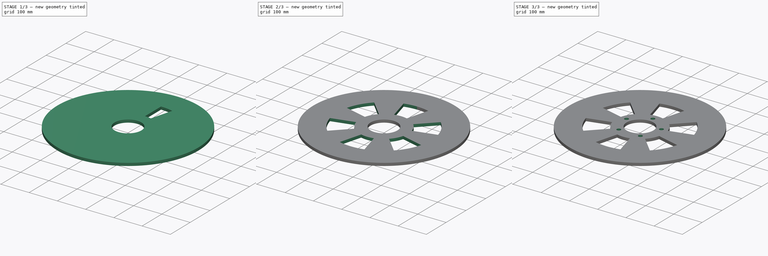
[diagram: build sequence overview — one tinted view per stage of 3, left to right]
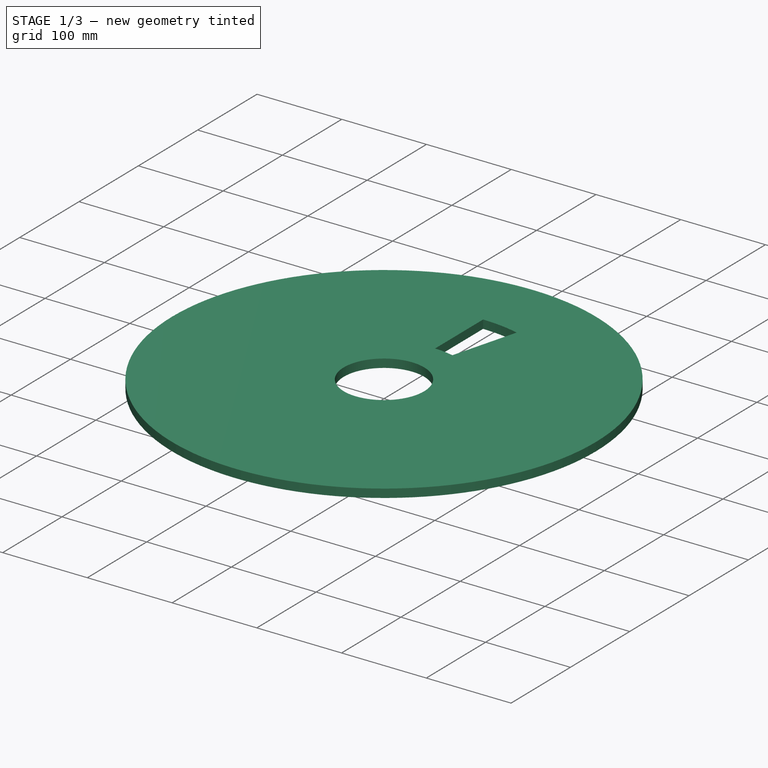
[diagram: stage 1 of 3 — iso view after this stage's code; geometry added in this stage tinted green]
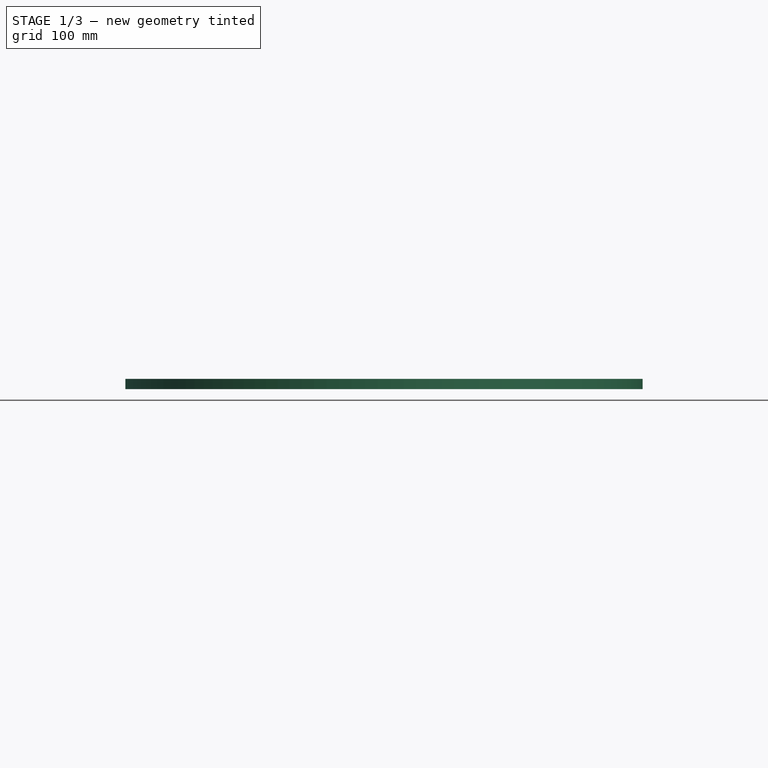
[diagram: stage 1 of 3 — front view after this stage's code; geometry added in this stage tinted green]
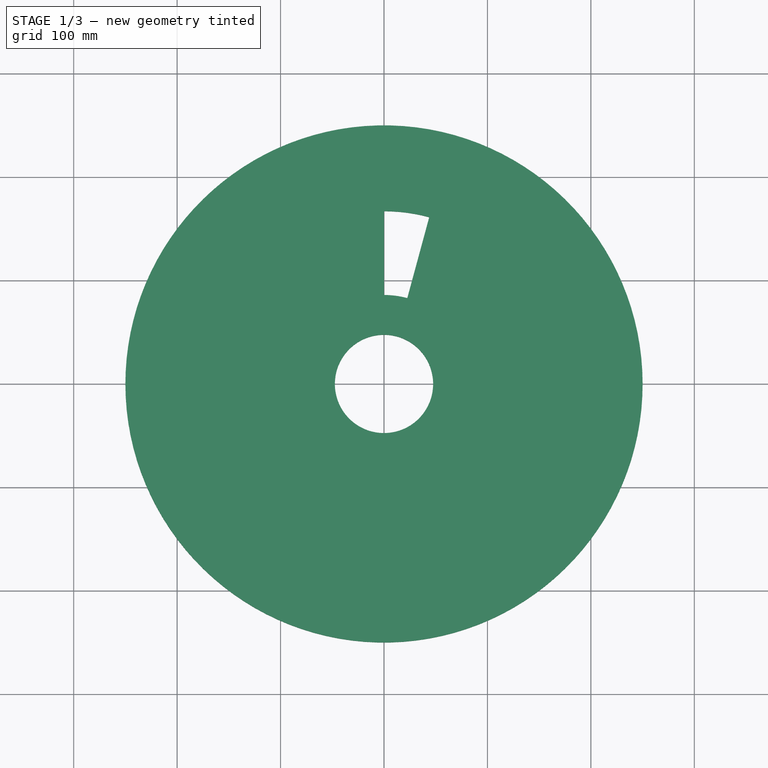
[diagram: stage 1 of 3 — top view after this stage's code; geometry added in this stage tinted green]
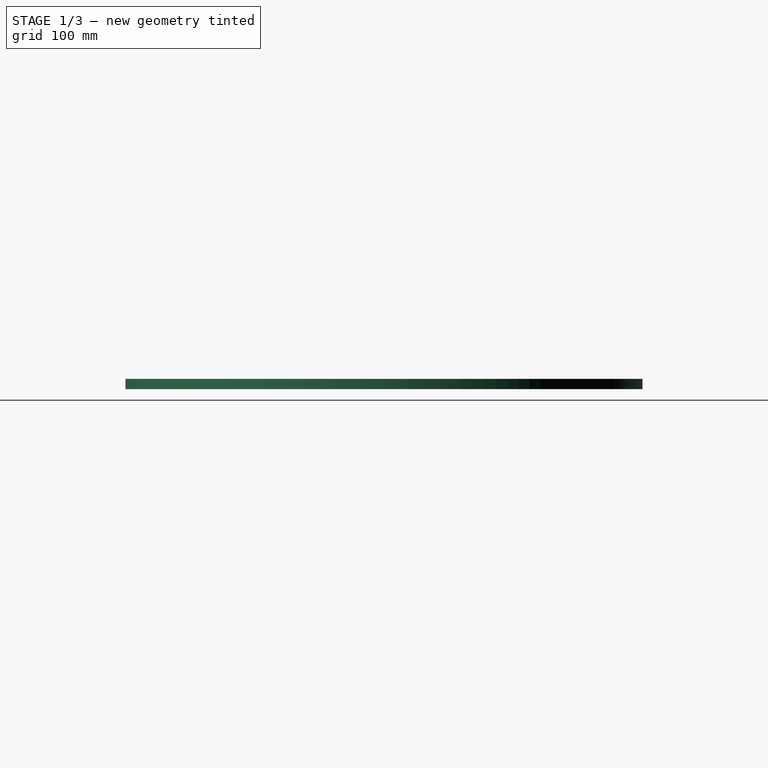
[diagram: stage 1 of 3 — right view after this stage's code; geometry added in this stage tinted green]
FCSTD DOCUMENT  (FreeCAD 0.21R33771 (Git))
Label: Rotor_Disk_Back_ReducedWeight
License: All rights reserved
LicenseURL: http://en.wikipedia.org/wiki/All_rights_reserved
objects: Sketcher::SketchObject×3, PartDesign::Pocket×2, PartDesign::PolarPattern×2, PartDesign::Pad×1, Spreadsheet::Sheet×1, PartDesign::Mirrored×1, PartDesign::MultiTransform×1, PartDesign::Body×1
note: 14 computed .brp shape members not serialized (recipe doc carries the construction recipe); baked Part::Feature solids carry a one-line shape summary decoded from their .brp
EXTERNAL_REF file=../../Master_of_Puppets.FCStd obj=Alternator
EXTERNAL_REF file=../../Master_of_Puppets.FCStd obj=Hub
EXTERNAL_REF file=../../Master_of_Puppets.FCStd obj=Spreadsheet

FEATURE [Sketcher::SketchObject] Sketch  label="DiskSketch"
  FullyConstrained = true
  MapMode = 5
  Support = -> [XY_Plane]
  expr: Constraints[1] = Spreadsheet.RotorDiskRadius
  expr: Constraints[2] = Spreadsheet.RotorDiskCentralHoleRadius
  sketch-geometry (2):
    g0: Circle CenterX=0 CenterY=0 CenterZ=0 NormalX=0 NormalY=0 NormalZ=1 AngleXU=0 Radius=250
    g1: Circle CenterX=0 CenterY=0 CenterZ=0 NormalX=0 NormalY=0 NormalZ=1 AngleXU=0 Radius=47.5
  constraints (4):
    c: Coincident(g0,g-1)
    c: Radius(g0) = 250
    c: Radius(g1) = 47.5
    c: Coincident(g1,g0)
FEATURE [PartDesign::Pad] Pad  label="Disk"
  AllowMultiFace = false
  Direction = (0,0,1)
  Length = 10
  Length2 = 100
  Profile = -> Sketch
  Type = 0
  expr: Length = Spreadsheet.RotorDiskThickness
FEATURE [Sketcher::SketchObject] Sketch001  label="PocketSketch"
  FullyConstrained = true
  MapMode = 5
  Placement = pos=(0,0,10) rot=(0,0,1;0rad)
  Support = -> [Pad]
  expr: Constraints[12] = Spreadsheet.WidthOuterPocket / 2
  expr: Constraints[13] = Spreadsheet.WidthInnerPocket / 2
  expr: Constraints[2] = Spreadsheet.PocketOuterRadius
  expr: Constraints[3] = Spreadsheet.PocketInnerRadius
  sketch-geometry (6):
    g0: Circle CenterX=0 CenterY=0 CenterZ=0 NormalX=0 NormalY=0 NormalZ=1 AngleXU=0 Radius=86
    g1: Circle CenterX=0 CenterY=0 CenterZ=0 NormalX=0 NormalY=0 NormalZ=1 AngleXU=0 Radius=167
    g2: LineSegment StartX=22.5147 StartY=83.0005 StartZ=0 EndX=43.7205 EndY=161.175 EndZ=0
    g3: LineSegment StartX=5.3e-15 StartY=86 StartZ=0 EndX=5.3e-15 EndY=167 EndZ=0
    g4: ArcOfCircle CenterX=0 CenterY=5.0665e-12 CenterZ=0 NormalX=0 NormalY=0 NormalZ=1 AngleXU=0 Radius=86 StartAngle=1.30591 EndAngle=1.5708
    g5: ArcOfCircle CenterX=0 CenterY=5.0665e-12 CenterZ=0 NormalX=0 NormalY=0 NormalZ=1 AngleXU=0 Radius=167 StartAngle=1.30591 EndAngle=1.5708
  constraints (17):
    c: Coincident(g0,g-1)
    c: Coincident(g1,g-1)
    c: Radius(g1) = 167
    c: Radius(g0) = 86
    c: PointOnObject(g3,g0)
    c: PointOnObject(g3,g1)
    c: Vertical(g3)
    c: Coincident(g4,g2)
    c: Coincident(g4,g3)
    c: PointOnObject(g5,g-2)
    c: Coincident(g5,g2)
    c: Coincident(g5,g3)
    c: DistanceX(g-1,g2) = 43.7205
    c: DistanceX(g-1,g2) = 22.5147
    c: PointOnObject(g2,g1)
    c: DistanceX(g-1,g3) = 0
    c: Coincident(g4,g5)
FEATURE [PartDesign::Pocket] Pocket  label="PocketPocket"
  AllowMultiFace = false
  BaseFeature = -> Pad
  Direction = (0,0,-1)
  Length = 5
  Length2 = 100
  Profile = -> Sketch001
  Type = 1
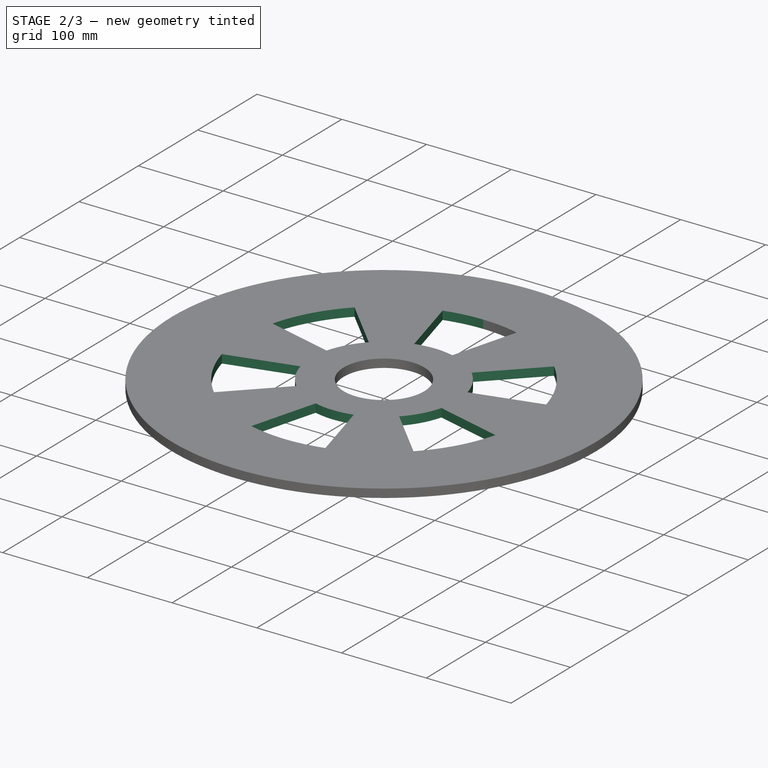
[diagram: stage 2 of 3 — iso view after this stage's code; geometry added in this stage tinted green]
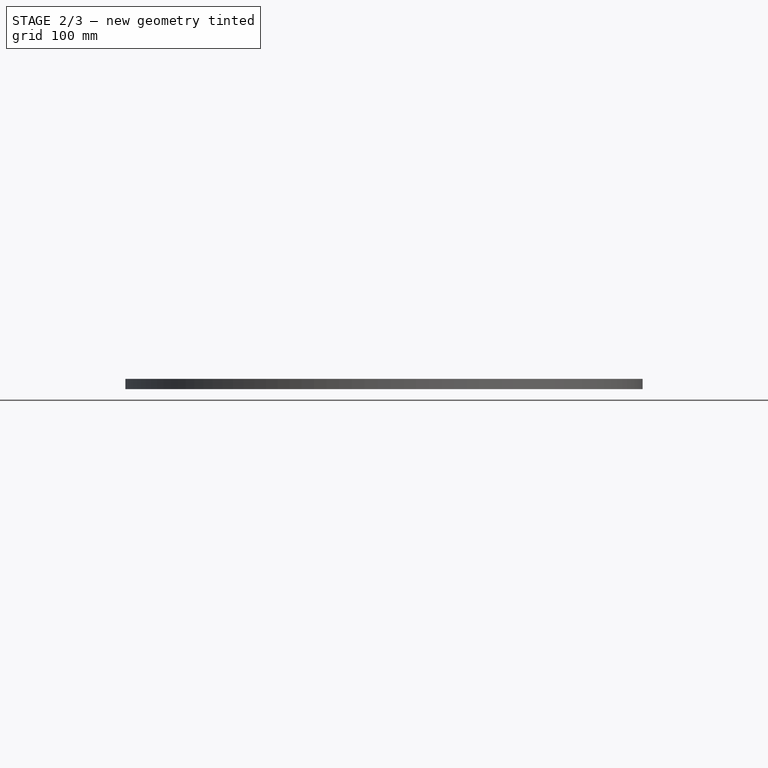
[diagram: stage 2 of 3 — front view after this stage's code; geometry added in this stage tinted green]
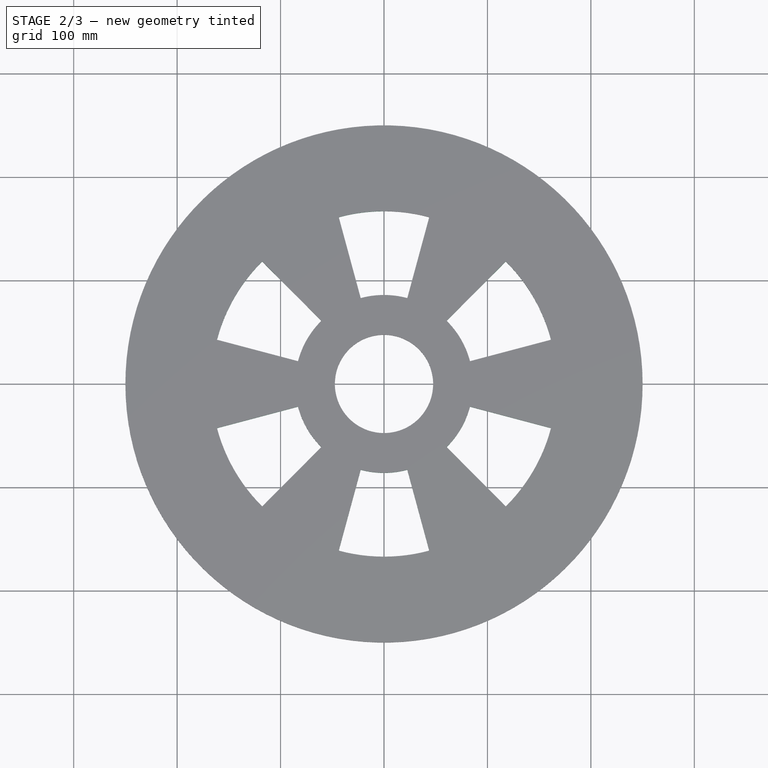
[diagram: stage 2 of 3 — top view after this stage's code; geometry added in this stage tinted green]
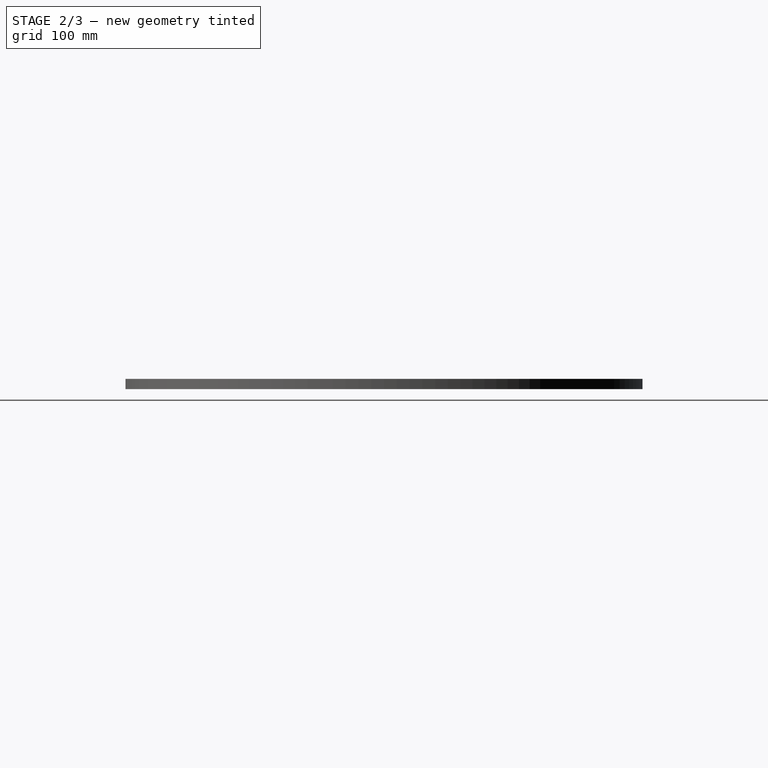
[diagram: stage 2 of 3 — right view after this stage's code; geometry added in this stage tinted green]
FEATURE [Spreadsheet::Sheet] Spreadsheet
  cells = A1='Inputs; A2='Spreadsheet; A3='HubHolesRadius; B3(HubHolesRadius)==Master_of_Puppets#Hub.HubHolesRadius; A4='RotorDiskRadius; B4(RotorDiskRadius)==Master_of_Puppets#Spreadsheet.RotorDiskRadius; A5='RotorDiskCentralHoleDiameter; B5(RotorDiskCentralHoleDiameter)==Master_of_Puppets#Spreadsheet.RotorDiskCentralHoleDiameter; A6='HubPitchCircleRadius; B6(HubPitchCircleRadius)==Master_of_Puppets#Hub.HubPitchCircleRadius; A7='RotorDiskThickness; B7(RotorDiskThickness)==Master_of_Puppets#Spreadsheet.RotorDiskThickness; A8='Alternator; A9='NumberOfPockets; B9(NumberOfPockets)==Master_of_Puppets#Alternator.NumberOfPockets; A10='PocketInnerRadius; B10(PocketInnerRadius)==Master_of_Puppets#Alternator.PocketInnerRadius; A11='PocketOuterRadius; B11(PocketOuterRadius)==Master_of_Puppets#Alternator.PocketOuterRadius; A12='WidthInnerPocket; B12(WidthInnerPocket)==Master_of_Puppets#Alternator.WidthInnerPocket; A13='WidthOuterPocket; B13(WidthOuterPocket)==Master_of_Puppets#Alternator.WidthOuterPocket; A14='Hub; A15='NumberOfHoles; B15(NumberOfHoles)==Master_of_Puppets#Hub.NumberOfHoles; A16='Calculated; A17='RotorDiskCentralHoleRadius; B17(RotorDiskCentralHoleRadius)==RotorDiskCentralHoleDiameter / 2
FEATURE [Sketcher::SketchObject] Sketch002  label="HoleSketch"
  FullyConstrained = true
  MapMode = 5
  Placement = pos=(0,0,10) rot=(0,0,1;0rad)
  Support = -> [Pad]
  expr: Constraints[1] = Spreadsheet.HubPitchCircleRadius
  expr: Constraints[4] = Spreadsheet.HubHolesRadius
  sketch-geometry (2):
    g0: Circle CenterX=0 CenterY=0 CenterZ=0 NormalX=0 NormalY=0 NormalZ=1 AngleXU=0 Radius=65
    g1: Circle CenterX=0 CenterY=65 CenterZ=0 NormalX=0 NormalY=0 NormalZ=1 AngleXU=0 Radius=7
  constraints (5):
    c: Coincident(g0,g-1)
    c: Radius(g0) = 65
    c: PointOnObject(g1,g0)
    c: PointOnObject(g1,g-2)
    c: Radius(g1) = 7
FEATURE [PartDesign::Mirrored] Mirrored
  MirrorPlane = -> Sketch001 [V_Axis]
FEATURE [PartDesign::PolarPattern] PolarPattern
  Angle = 360
  Axis = -> Sketch001 [N_Axis]
  Occurrences = 6
  expr: Occurrences = Spreadsheet.NumberOfPockets
FEATURE [PartDesign::MultiTransform] MultiTransform  label="PocketMultiTransform"
  BaseFeature = -> Pocket
  Originals = -> [Pocket]
  Transformations = -> [Mirrored,PolarPattern]
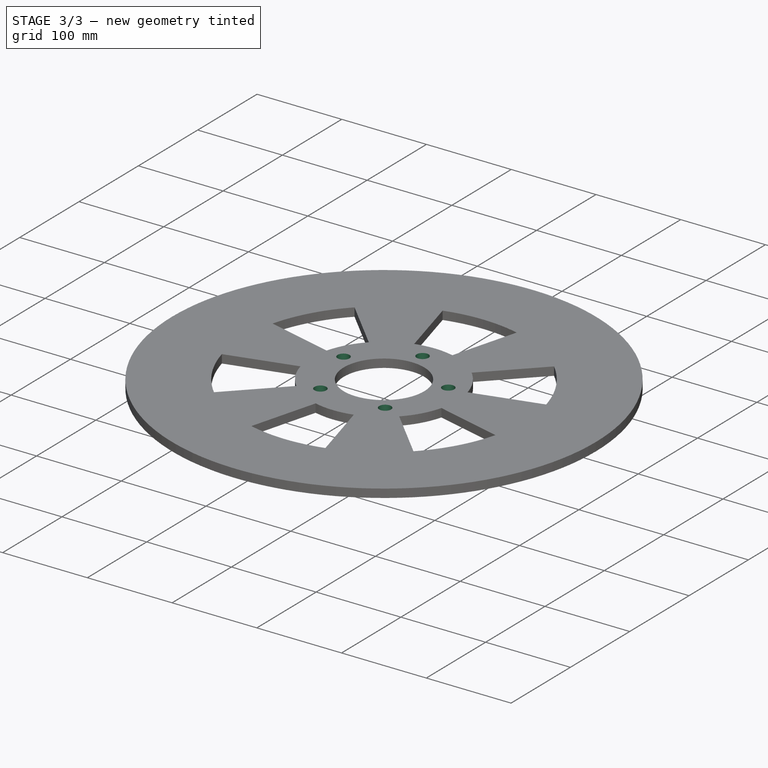
[diagram: stage 3 of 3 — iso view after this stage's code; geometry added in this stage tinted green]
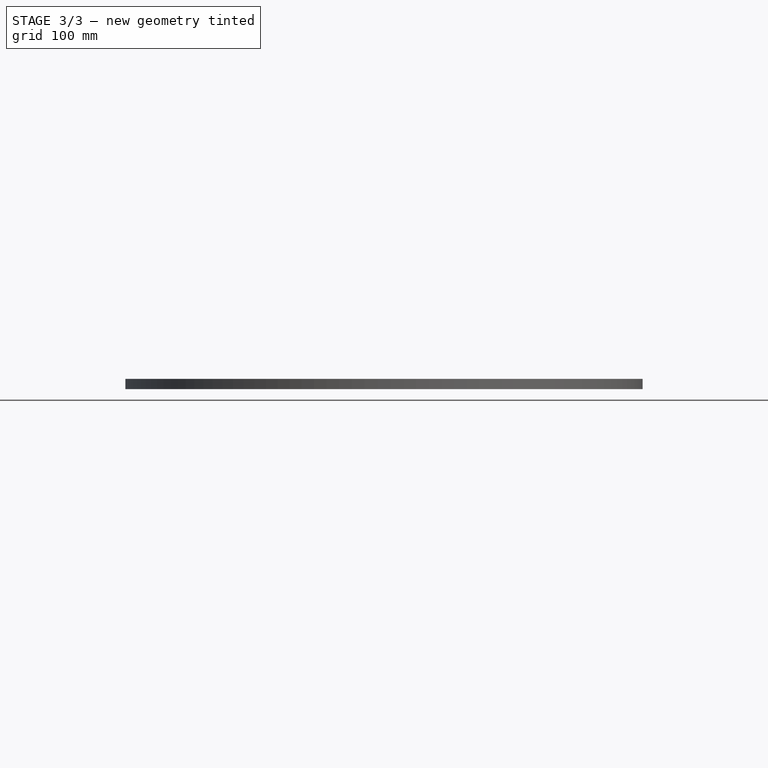
[diagram: stage 3 of 3 — front view after this stage's code; geometry added in this stage tinted green]
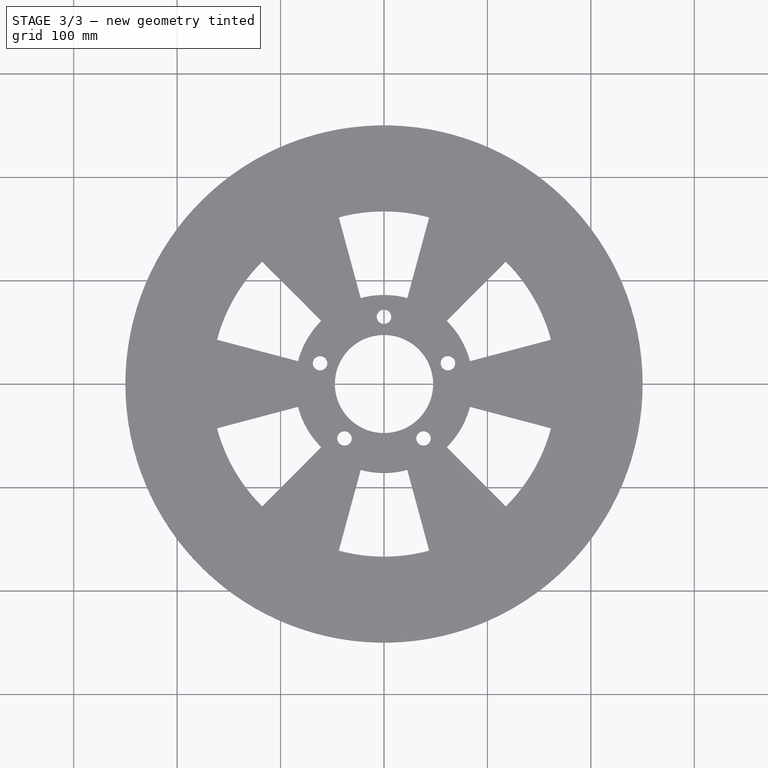
[diagram: stage 3 of 3 — top view after this stage's code; geometry added in this stage tinted green]
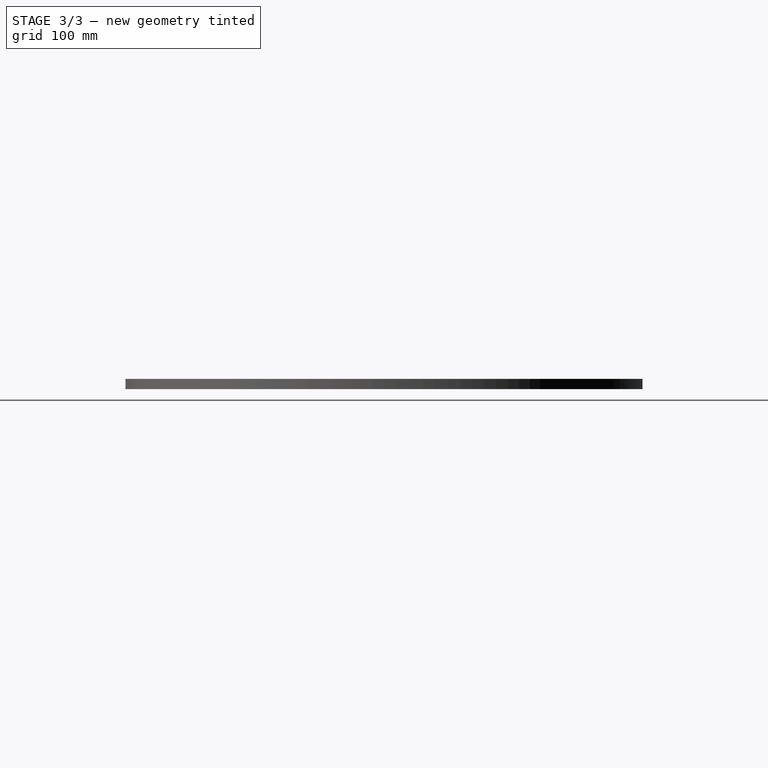
[diagram: stage 3 of 3 — right view after this stage's code; geometry added in this stage tinted green]
FEATURE [PartDesign::Pocket] Pocket001  label="HolePocket"
  BaseFeature = -> MultiTransform
  Direction = (0,0,-1)
  Length = 5
  Length2 = 5
  Profile = -> Sketch002
  ReferenceAxis = -> Sketch002 [N_Axis]
  Type = 1
FEATURE [PartDesign::PolarPattern] PolarPattern001  label="HolePolarPattern"
  Angle = 360
  Axis = -> Sketch002 [N_Axis]
  BaseFeature = -> Pocket001
  Occurrences = 5
  Originals = -> [Pocket001]
  expr: Occurrences = Spreadsheet.NumberOfHoles
FEATURE [PartDesign::Body] Body  label="Rotor_Disk_Back"
  Group = -> [Sketch,Pad,Sketch001,Pocket,MultiTransform,Sketch002,Mirrored,PolarPattern,Pocket001,PolarPattern001]
  Openafpm_Flat = true
  Origin = -> Origin
  Tip = -> PolarPattern001
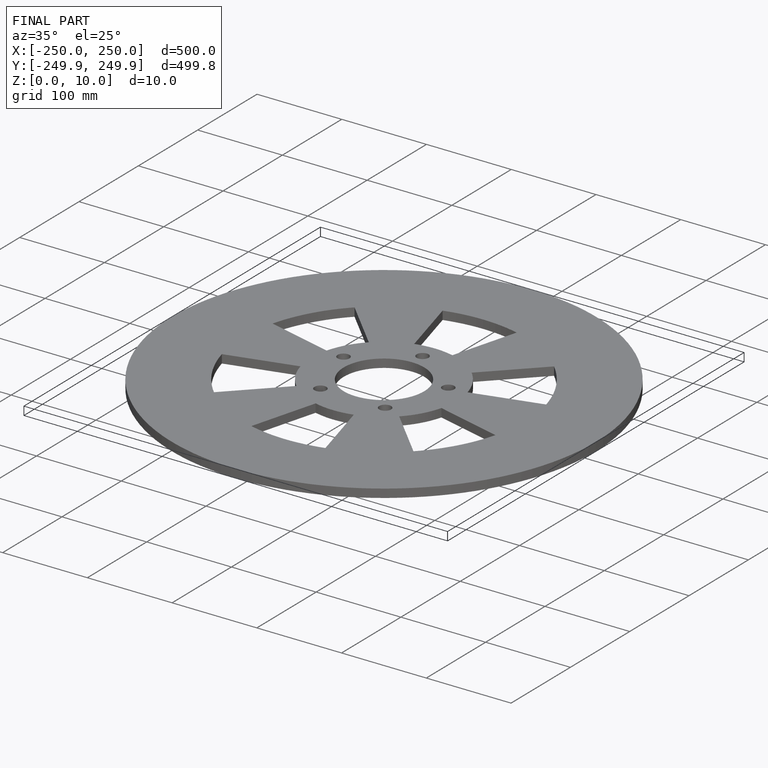
[diagram: finished part — iso view with bounding-box wireframe]
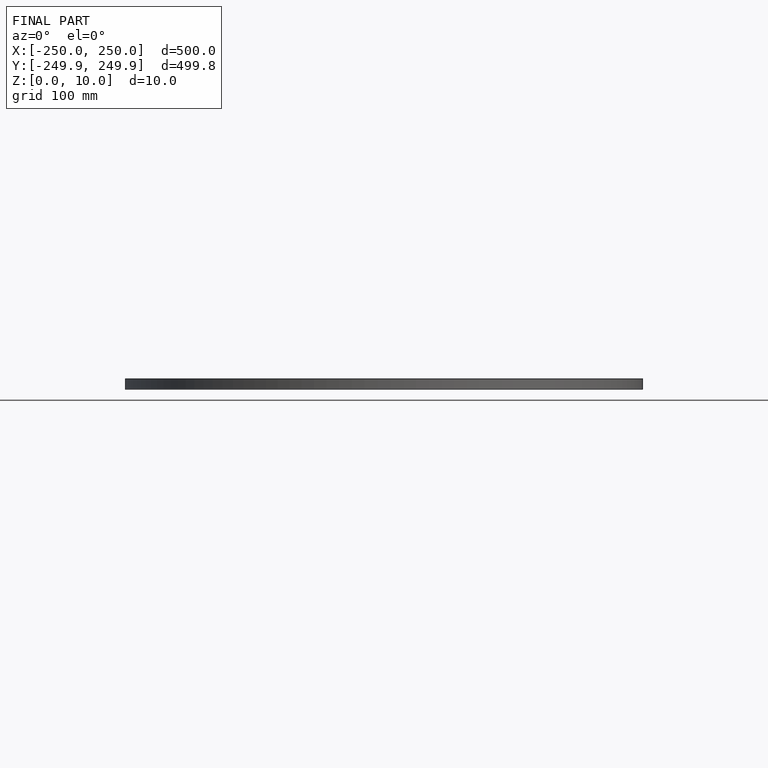
[diagram: finished part — front view with bounding-box wireframe]
